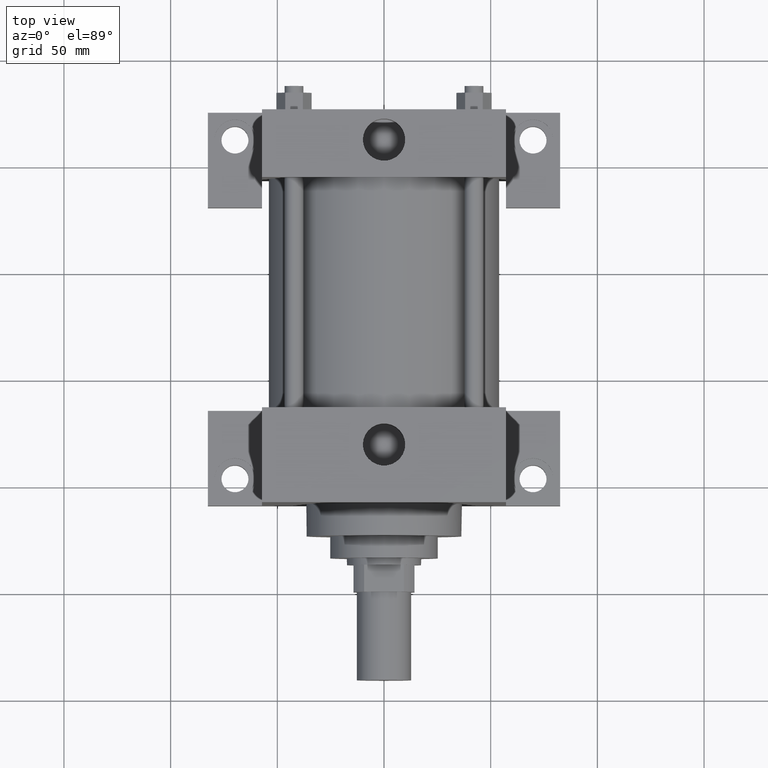
[diagram: clean part render]
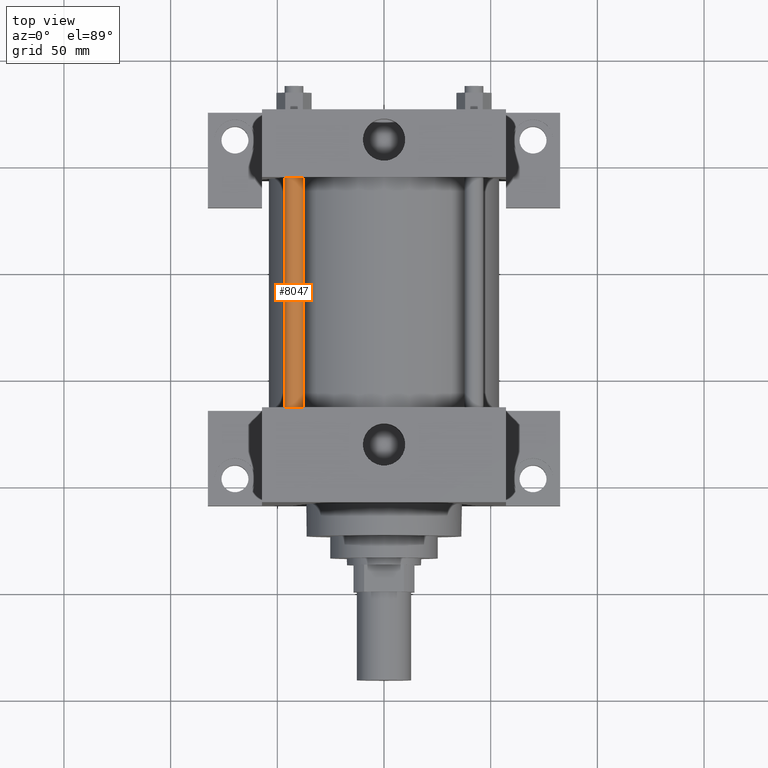
[diagram: same view with one face highlighted and labeled with its STEP entity id]
A machine part, top view. The second image highlights one B-rep face of the part: STEP entity #8047.
In plain terms, the highlighted cylindrical surface (bore or boss wall) has radius 4.3815 mm, axis along (0, -1, 0).
Its self-contained STEP definition (entity closure, byte-faithful):
#585=EDGE_CURVE('',#591,#591,#586,.T.);
#586=CIRCLE('',#587,4.381500000E+000);
#587=AXIS2_PLACEMENT_3D('',#588,#589,#590);
#588=CARTESIAN_POINT('',(-4.216400000E+001,8.572500000E+001,4.216400000E+001));
#589=DIRECTION('',(0.0E+000,1.0E+000,0.0E+000));
#590=DIRECTION('',(1.0E+000,0.0E+000,0.0E+000));
#591=VERTEX_POINT('',#592);
#592=CARTESIAN_POINT('',(-3.778250000E+001,8.572500000E+001,4.216400000E+001));
#1188=FACE_OUTER_BOUND('',#1190,.T.);
#1189=FACE_BOUND('',#1191,.T.);
#1190=EDGE_LOOP('',(#1192));
#1191=EDGE_LOOP('',(#1193));
#1192=ORIENTED_EDGE('',*,*,#1247,.F.);
#1193=ORIENTED_EDGE('',*,*,#585,.T.);
#1194=CYLINDRICAL_SURFACE('',#1195,4.381500000E+000);
#1195=AXIS2_PLACEMENT_3D('',#1196,#1197,#1198);
#1196=CARTESIAN_POINT('',(-4.216400000E+001,1.936750000E+002,4.216400000E+001));
#1197=DIRECTION('',(0.0E+000,-1.0E+000,0.0E+000));
#1198=DIRECTION('',(0.0E+000,0.0E+000,-1.0E+000));
#1247=EDGE_CURVE('',#1253,#1253,#1248,.T.);
#1248=CIRCLE('',#1249,4.381500000E+000);
#1249=AXIS2_PLACEMENT_3D('',#1250,#1251,#1252);
#1250=CARTESIAN_POINT('',(-4.216400000E+001,1.936750000E+002,4.216400000E+001));
#1251=DIRECTION('',(0.0E+000,1.0E+000,0.0E+000));
#1252=DIRECTION('',(1.0E+000,0.0E+000,0.0E+000));
#1253=VERTEX_POINT('',#1254);
#1254=CARTESIAN_POINT('',(-3.778250000E+001,1.936750000E+002,4.216400000E+001));
#8047=ADVANCED_FACE('',(#1188,#1189),#1194,.T.);